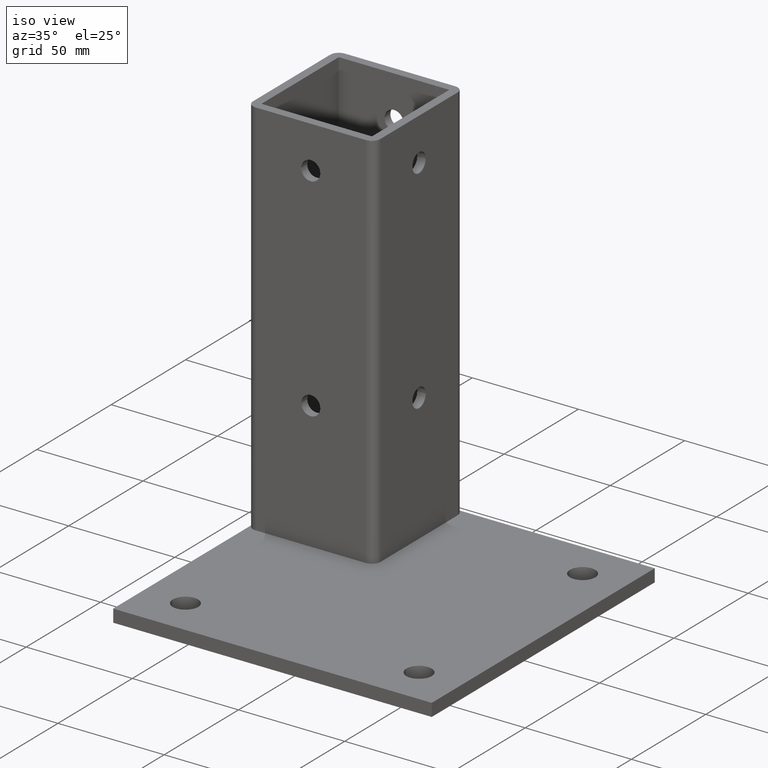
[diagram: clean part render]
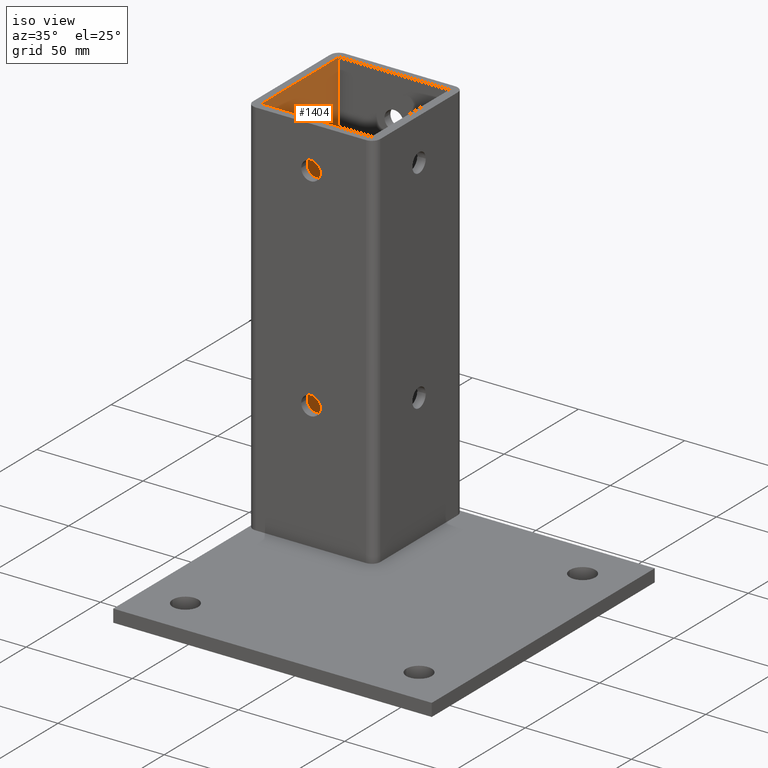
[diagram: same view with one face highlighted and labeled with its STEP entity id]
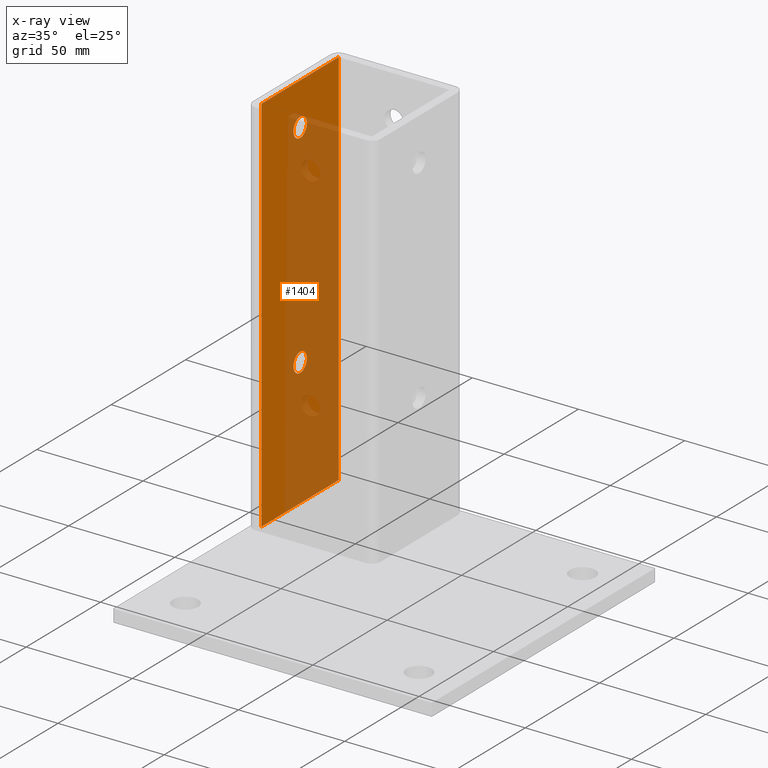
[diagram: x-ray of the same camera — body ghosted, the highlighted face saturated]
A machine part, iso view. The second image highlights one B-rep face of the part: STEP entity #1404.
The next image is the same camera in x-ray: the body ghosted, the highlighted face saturated — about 59% of this face is hidden behind the body in this view.
In plain terms, the highlighted planar face has unit normal (1, -0, 0).
Its self-contained STEP definition (entity closure, byte-faithful):
#14 = VERTEX_POINT ( 'NONE', #16 ) ;
#16 = CARTESIAN_POINT ( 'NONE',  ( -26.00000000000000400, 4.500000000000003600, 160.0000000000000000 ) ) ;
#47 = CARTESIAN_POINT ( 'NONE',  ( -26.00000000000000400, -26.00000000000000400, 90.00000000000000000 ) ) ;
#48 = DIRECTION ( 'NONE',  ( 0.0000000000000000000, 0.0000000000000000000, -1.000000000000000000 ) ) ;
#49 = CARTESIAN_POINT ( 'NONE',  ( -26.00000000000000400, 6.687256751344562700E-031, 160.0000000000000000 ) ) ;
#50 = DIRECTION ( 'NONE',  ( -1.000000000000000000, 3.854941057726234600E-016, 0.0000000000000000000 ) ) ;
#51 = DIRECTION ( 'NONE',  ( 0.0000000000000000000, -1.000000000000000000, 0.0000000000000000000 ) ) ;
#66 = VERTEX_POINT ( 'NONE', #1232 ) ;
#67 = VERTEX_POINT ( 'NONE', #1240 ) ;
#78 = CARTESIAN_POINT ( 'NONE',  ( -26.00000000000000400, 6.687256751344562700E-031, 160.0000000000000000 ) ) ;
#79 = DIRECTION ( 'NONE',  ( -1.000000000000000000, 3.854941057726234600E-016, 0.0000000000000000000 ) ) ;
#80 = DIRECTION ( 'NONE',  ( 0.0000000000000000000, -1.000000000000000000, 0.0000000000000000000 ) ) ;
#93 = CARTESIAN_POINT ( 'NONE',  ( -26.00000000000000700, 6.687256751344565300E-031, 60.00000000000000000 ) ) ;
#94 = DIRECTION ( 'NONE',  ( -1.000000000000000000, 3.854941057726235100E-016, 0.0000000000000000000 ) ) ;
#95 = DIRECTION ( 'NONE',  ( -7.709882115452470300E-016, -1.000000000000000000, 0.0000000000000000000 ) ) ;
#203 = PLANE ( 'NONE',  #1362 ) ;
#204 = CARTESIAN_POINT ( 'NONE',  ( -26.00000000000000400, -26.00000000000000400, 180.0000000000000000 ) ) ;
#205 = DIRECTION ( 'NONE',  ( 1.000000000000000000, -0.0000000000000000000, 0.0000000000000000000 ) ) ;
#206 = DIRECTION ( 'NONE',  ( 0.0000000000000000000, 0.0000000000000000000, -1.000000000000000000 ) ) ;
#243 = AXIS2_PLACEMENT_3D ( 'NONE', #49, #50, #51 ) ;
#248 = AXIS2_PLACEMENT_3D ( 'NONE', #1322, #1323, #1324 ) ;
#258 = EDGE_CURVE ( 'NONE', #1425, #1421, #552, .T. ) ;
#259 = EDGE_CURVE ( 'NONE', #947, #14, #549, .T. ) ;
#265 = EDGE_CURVE ( 'NONE', #934, #932, #542, .T. ) ;
#280 = EDGE_CURVE ( 'NONE', #1421, #67, #521, .T. ) ;
#284 = EDGE_CURVE ( 'NONE', #66, #1425, #1169, .T. ) ;
#287 = EDGE_CURVE ( 'NONE', #66, #67, #999, .T. ) ;
#324 = EDGE_CURVE ( 'NONE', #14, #947, #1058, .T. ) ;
#330 = EDGE_CURVE ( 'NONE', #932, #934, #1067, .T. ) ;
#447 = CARTESIAN_POINT ( 'NONE',  ( -26.00000000000000400, 4.500000000000003600, 60.00000000000000000 ) ) ;
#449 = CARTESIAN_POINT ( 'NONE',  ( -26.00000000000001100, -4.500000000000003600, 60.00000000000000000 ) ) ;
#462 = CARTESIAN_POINT ( 'NONE',  ( -26.00000000000000400, -4.500000000000003600, 160.0000000000000000 ) ) ;
#521 = LINE ( 'NONE', #1271, #1160 ) ;
#542 = CIRCLE ( 'NONE', #248, 4.500000000000003600 ) ;
#549 = CIRCLE ( 'NONE', #243, 4.500000000000003600 ) ;
#551 = VECTOR ( 'NONE', #48, 1000.000000000000000 ) ;
#552 = LINE ( 'NONE', #47, #551 ) ;
#703 = EDGE_LOOP ( 'NONE', ( #729, #728, #727, #726 ) ) ;
#705 = EDGE_LOOP ( 'NONE', ( #731, #730 ) ) ;
#706 = EDGE_LOOP ( 'NONE', ( #733, #732 ) ) ;
#726 = ORIENTED_EDGE ( 'NONE', *, *, #287, .F. ) ;
#727 = ORIENTED_EDGE ( 'NONE', *, *, #280, .T. ) ;
#728 = ORIENTED_EDGE ( 'NONE', *, *, #258, .T. ) ;
#729 = ORIENTED_EDGE ( 'NONE', *, *, #284, .T. ) ;
#730 = ORIENTED_EDGE ( 'NONE', *, *, #324, .T. ) ;
#731 = ORIENTED_EDGE ( 'NONE', *, *, #259, .T. ) ;
#732 = ORIENTED_EDGE ( 'NONE', *, *, #330, .T. ) ;
#733 = ORIENTED_EDGE ( 'NONE', *, *, #265, .T. ) ;
#902 = AXIS2_PLACEMENT_3D ( 'NONE', #93, #94, #95 ) ;
#905 = AXIS2_PLACEMENT_3D ( 'NONE', #78, #79, #80 ) ;
#932 = VERTEX_POINT ( 'NONE', #447 ) ;
#934 = VERTEX_POINT ( 'NONE', #449 ) ;
#947 = VERTEX_POINT ( 'NONE', #462 ) ;
#977 = CARTESIAN_POINT ( 'NONE',  ( -26.00000000000000400, -26.00000000000000400, 6.938893903907228400E-015 ) ) ;
#981 = CARTESIAN_POINT ( 'NONE',  ( -25.99999999000000300, -25.99999999000000300, 180.0000000000000000 ) ) ;
#999 = LINE ( 'NONE', #1285, #1001 ) ;
#1001 = VECTOR ( 'NONE', #1286, 1000.000000000000000 ) ;
#1058 = CIRCLE ( 'NONE', #905, 4.500000000000003600 ) ;
#1067 = CIRCLE ( 'NONE', #902, 4.500000000000003600 ) ;
#1137 = FACE_BOUND ( 'NONE', #706, .T. ) ;
#1138 = FACE_BOUND ( 'NONE', #705, .T. ) ;
#1140 = FACE_OUTER_BOUND ( 'NONE', #703, .T. ) ;
#1160 = VECTOR ( 'NONE', #1272, 1000.000000000000000 ) ;
#1169 = LINE ( 'NONE', #1279, #1187 ) ;
#1187 = VECTOR ( 'NONE', #1280, 1000.000000000000000 ) ;
#1232 = CARTESIAN_POINT ( 'NONE',  ( -25.99999999000000300, 25.99999999000000300, 180.0000000000000000 ) ) ;
#1240 = CARTESIAN_POINT ( 'NONE',  ( -26.00000000000000400, 26.00000000000000400, 6.938893903907228400E-015 ) ) ;
#1271 = CARTESIAN_POINT ( 'NONE',  ( -26.00000000000000400, 0.0000000000000000000, 0.0000000000000000000 ) ) ;
#1272 = DIRECTION ( 'NONE',  ( 0.0000000000000000000, 1.000000000000000000, 0.0000000000000000000 ) ) ;
#1279 = CARTESIAN_POINT ( 'NONE',  ( -26.00000000000000400, 0.0000000000000000000, 180.0000000000000000 ) ) ;
#1280 = DIRECTION ( 'NONE',  ( -0.0000000000000000000, -1.000000000000000000, -0.0000000000000000000 ) ) ;
#1285 = CARTESIAN_POINT ( 'NONE',  ( -26.00000000000000400, 26.00000000000000400, 90.00000000000000000 ) ) ;
#1286 = DIRECTION ( 'NONE',  ( 0.0000000000000000000, 0.0000000000000000000, -1.000000000000000000 ) ) ;
#1322 = CARTESIAN_POINT ( 'NONE',  ( -26.00000000000000700, 6.687256751344565300E-031, 60.00000000000000000 ) ) ;
#1323 = DIRECTION ( 'NONE',  ( -1.000000000000000000, 3.854941057726235100E-016, 0.0000000000000000000 ) ) ;
#1324 = DIRECTION ( 'NONE',  ( -7.709882115452470300E-016, -1.000000000000000000, 0.0000000000000000000 ) ) ;
#1362 = AXIS2_PLACEMENT_3D ( 'NONE', #204, #205, #206 ) ;
#1404 = ADVANCED_FACE ( 'NONE', ( #1137, #1138, #1140 ), #203, .T. ) ;
#1421 = VERTEX_POINT ( 'NONE', #977 ) ;
#1425 = VERTEX_POINT ( 'NONE', #981 ) ;